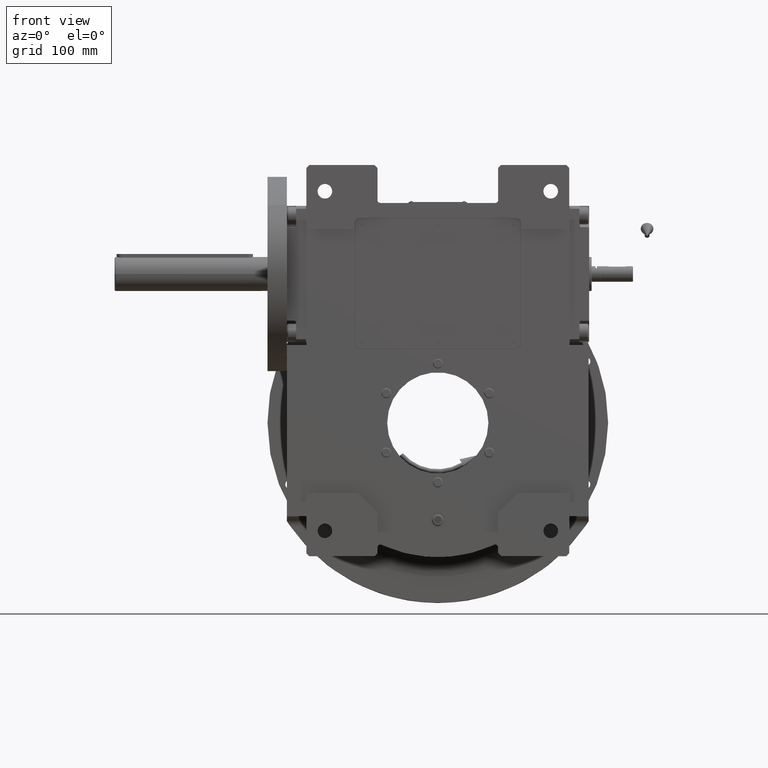
[diagram: clean part render]
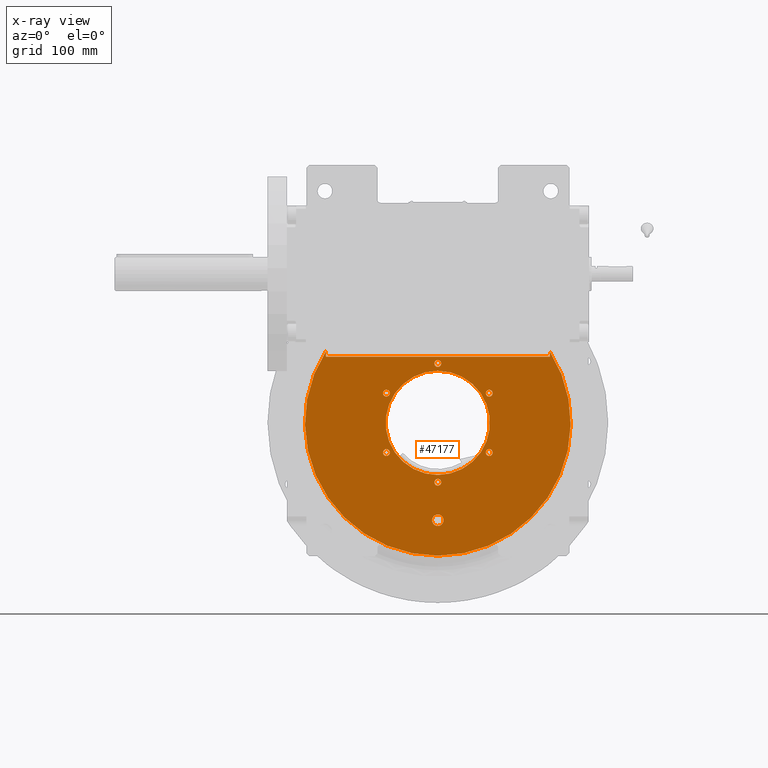
[diagram: x-ray — body ghosted, one internal face saturated and labeled with its STEP entity id]
A machine part, front view, then the same camera in x-ray: the body is ghosted and one INTERNAL B-rep face — a face not visible from any outside direction — is saturated and labeled: STEP entity #47177.
In plain terms, the highlighted planar face has unit normal (0, -1, 0).
Its self-contained STEP definition (entity closure, byte-faithful):
#52 = VERTEX_POINT ( 'NONE', #56416 ) ;
#644 = CARTESIAN_POINT ( 'NONE',  ( 3.500000000000009770, -63.00000000000001421, -61.00000000000000000 ) ) ;
#797 = EDGE_CURVE ( 'NONE', #66663, #32699, #59650, .T. ) ;
#1345 = VERTEX_POINT ( 'NONE', #54792 ) ;
#1465 = CARTESIAN_POINT ( 'NONE',  ( -49.32754963085080391, -63.00000000000001421, 30.50000000000000000 ) ) ;
#1786 = ORIENTED_EDGE ( 'NONE', *, *, #62558, .T. ) ;
#2279 = DIRECTION ( 'NONE',  ( 0.000000000000000000, -1.000000000000000000, 1.836970198721029688E-16 ) ) ;
#2328 = DIRECTION ( 'NONE',  ( 0.000000000000000000, 0.000000000000000000, 1.000000000000000000 ) ) ;
#3195 = VERTEX_POINT ( 'NONE', #46321 ) ;
#3951 = DIRECTION ( 'NONE',  ( 0.000000000000000000, 0.000000000000000000, 1.000000000000000000 ) ) ;
#4309 = EDGE_CURVE ( 'NONE', #58530, #43158, #64543, .T. ) ;
#4713 = CARTESIAN_POINT ( 'NONE',  ( 52.82754963085080391, -63.00000000000001421, 30.50000000000000000 ) ) ;
#4815 = EDGE_CURVE ( 'NONE', #52893, #51663, #31668, .T. ) ;
#4828 = DIRECTION ( 'NONE',  ( 0.000000000000000000, 0.000000000000000000, 1.000000000000000000 ) ) ;
#5087 = DIRECTION ( 'NONE',  ( 0.000000000000000000, 0.000000000000000000, 1.000000000000000000 ) ) ;
#5230 = DIRECTION ( 'NONE',  ( 0.000000000000000000, 0.000000000000000000, 1.000000000000000000 ) ) ;
#5348 = EDGE_LOOP ( 'NONE', ( #43760, #58051 ) ) ;
#5763 = CIRCLE ( 'NONE', #62669, 136.5000000000000000 ) ;
#5811 = VERTEX_POINT ( 'NONE', #69056 ) ;
#6097 = DIRECTION ( 'NONE',  ( 0.000000000000000000, 1.000000000000000000, 0.000000000000000000 ) ) ;
#6365 = EDGE_CURVE ( 'NONE', #14665, #3195, #39849, .T. ) ;
#6419 = ORIENTED_EDGE ( 'NONE', *, *, #55263, .T. ) ;
#6797 = EDGE_CURVE ( 'NONE', #27992, #1345, #45746, .T. ) ;
#6910 = DIRECTION ( 'NONE',  ( -1.209434443846979996E-15, -1.000000000000000000, 1.209434443846979996E-15 ) ) ;
#7019 = CARTESIAN_POINT ( 'NONE',  ( -115.0000000000000000, -63.00000000000000000, 0.000000000000000000 ) ) ;
#7023 = FACE_BOUND ( 'NONE', #56548, .T. ) ;
#7496 = CIRCLE ( 'NONE', #13317, 3.500000000000003109 ) ;
#8122 = AXIS2_PLACEMENT_3D ( 'NONE', #17363, #6097, #22826 ) ;
#8497 = DIRECTION ( 'NONE',  ( -0.000000000000000000, -1.000000000000000000, -0.000000000000000000 ) ) ;
#8956 = CIRCLE ( 'NONE', #49608, 3.500000000000003109 ) ;
#10473 = DIRECTION ( 'NONE',  ( 0.000000000000000000, 0.000000000000000000, 1.000000000000000000 ) ) ;
#10800 = ORIENTED_EDGE ( 'NONE', *, *, #60027, .T. ) ;
#11324 = CARTESIAN_POINT ( 'NONE',  ( 52.82754963085080391, -63.00000000000001421, -30.50000000000000000 ) ) ;
#12141 = FACE_OUTER_BOUND ( 'NONE', #30647, .T. ) ;
#12479 = FACE_BOUND ( 'NONE', #53424, .T. ) ;
#12758 = DIRECTION ( 'NONE',  ( -0.000000000000000000, -1.000000000000000000, -0.000000000000000000 ) ) ;
#12840 = FACE_BOUND ( 'NONE', #44963, .T. ) ;
#13317 = AXIS2_PLACEMENT_3D ( 'NONE', #4713, #32347, #5087 ) ;
#13583 = CIRCLE ( 'NONE', #32157, 3.500000000000003109 ) ;
#14124 = CARTESIAN_POINT ( 'NONE',  ( -115.0000000000000000, -63.00000000000000000, 67.99999999999997158 ) ) ;
#14612 = VERTEX_POINT ( 'NONE', #39973 ) ;
#14665 = VERTEX_POINT ( 'NONE', #1465 ) ;
#14747 = CARTESIAN_POINT ( 'NONE',  ( 0.000000000000000000, -62.99999999999998579, 67.99999999999997158 ) ) ;
#15323 = CIRCLE ( 'NONE', #53693, 3.500000000000003109 ) ;
#15748 = DIRECTION ( 'NONE',  ( 0.000000000000000000, 1.000000000000000000, 0.000000000000000000 ) ) ;
#15927 = AXIS2_PLACEMENT_3D ( 'NONE', #61608, #39779, #51433 ) ;
#15973 = ORIENTED_EDGE ( 'NONE', *, *, #51117, .T. ) ;
#16100 = DIRECTION ( 'NONE',  ( 0.000000000000000000, 0.000000000000000000, 1.000000000000000000 ) ) ;
#16171 = DIRECTION ( 'NONE',  ( -0.000000000000000000, -1.000000000000000000, -0.000000000000000000 ) ) ;
#16442 = AXIS2_PLACEMENT_3D ( 'NONE', #11324, #12758, #44409 ) ;
#16539 = DIRECTION ( 'NONE',  ( 0.000000000000000000, 0.000000000000000000, 1.000000000000000000 ) ) ;
#17136 = VERTEX_POINT ( 'NONE', #23847 ) ;
#17361 = LINE ( 'NONE', #67524, #44140 ) ;
#17363 = CARTESIAN_POINT ( 'NONE',  ( 0.000000000000000000, -63.00000000000000000, 0.000000000000000000 ) ) ;
#17448 = ORIENTED_EDGE ( 'NONE', *, *, #4815, .T. ) ;
#17535 = EDGE_CURVE ( 'NONE', #43158, #51663, #29923, .T. ) ;
#17837 = DIRECTION ( 'NONE',  ( 1.000000000000000000, -2.362176648138630895E-15, 0.000000000000000000 ) ) ;
#17900 = AXIS2_PLACEMENT_3D ( 'NONE', #66343, #16171, #16539 ) ;
#19241 = CARTESIAN_POINT ( 'NONE',  ( 49.32754963085080391, -63.00000000000001421, 30.50000000000000000 ) ) ;
#19430 = CARTESIAN_POINT ( 'NONE',  ( 115.0000000000000000, -63.00000000000000000, 73.53400573884168523 ) ) ;
#19832 = AXIS2_PLACEMENT_3D ( 'NONE', #64816, #30325, #42632 ) ;
#19902 = AXIS2_PLACEMENT_3D ( 'NONE', #65002, #65387, #3951 ) ;
#20145 = CARTESIAN_POINT ( 'NONE',  ( 0.000000000000000000, -63.00000000000000000, 0.000000000000000000 ) ) ;
#20416 = EDGE_LOOP ( 'NONE', ( #10800, #52899 ) ) ;
#22246 = EDGE_CURVE ( 'NONE', #3195, #14665, #8956, .T. ) ;
#22826 = DIRECTION ( 'NONE',  ( 0.000000000000000000, 0.000000000000000000, 1.000000000000000000 ) ) ;
#23613 = VERTEX_POINT ( 'NONE', #65614 ) ;
#23847 = CARTESIAN_POINT ( 'NONE',  ( 3.499999999999997780, -63.00000000000001421, 61.00000000000000000 ) ) ;
#24460 = CARTESIAN_POINT ( 'NONE',  ( 5.875000000000000000, -63.00000000000001421, -100.0000000000000000 ) ) ;
#24611 = EDGE_CURVE ( 'NONE', #52, #25044, #30201, .T. ) ;
#24825 = CARTESIAN_POINT ( 'NONE',  ( -2.204364238465240161E-15, -63.00000000000001421, 61.00000000000000000 ) ) ;
#24843 = CARTESIAN_POINT ( 'NONE',  ( -3.499999999999990674, -63.00000000000001421, -61.00000000000000000 ) ) ;
#25044 = VERTEX_POINT ( 'NONE', #51770 ) ;
#25465 = ORIENTED_EDGE ( 'NONE', *, *, #50947, .T. ) ;
#25554 = DIRECTION ( 'NONE',  ( 0.000000000000000000, 0.000000000000000000, 1.000000000000000000 ) ) ;
#25761 = EDGE_CURVE ( 'NONE', #53920, #27402, #60473, .T. ) ;
#27073 = VECTOR ( 'NONE', #57185, 1000.000000000000000 ) ;
#27402 = VERTEX_POINT ( 'NONE', #27596 ) ;
#27583 = AXIS2_PLACEMENT_3D ( 'NONE', #53922, #54273, #16100 ) ;
#27596 = CARTESIAN_POINT ( 'NONE',  ( -56.32754963085080391, -63.00000000000001421, -30.50000000000000000 ) ) ;
#27992 = VERTEX_POINT ( 'NONE', #24460 ) ;
#29224 = PLANE ( 'NONE',  #40802 ) ;
#29582 = FACE_BOUND ( 'NONE', #53483, .T. ) ;
#29923 = LINE ( 'NONE', #7019, #27073 ) ;
#30201 = CIRCLE ( 'NONE', #8122, 53.50000000000000000 ) ;
#30325 = DIRECTION ( 'NONE',  ( -0.000000000000000000, -1.000000000000000000, -0.000000000000000000 ) ) ;
#30647 = EDGE_LOOP ( 'NONE', ( #56891, #48471, #6419, #17448, #55343 ) ) ;
#30880 = DIRECTION ( 'NONE',  ( -0.000000000000000000, -1.000000000000000000, -0.000000000000000000 ) ) ;
#30942 = CARTESIAN_POINT ( 'NONE',  ( -115.0000000000000000, -63.00000000000000000, 73.53400573884168523 ) ) ;
#30996 = CARTESIAN_POINT ( 'NONE',  ( -52.82754963085080391, -63.00000000000001421, 30.50000000000000000 ) ) ;
#31668 = CIRCLE ( 'NONE', #45584, 136.5000000000000000 ) ;
#32125 = CARTESIAN_POINT ( 'NONE',  ( 0.000000000000000000, -63.00000000000000000, 0.000000000000000000 ) ) ;
#32157 = AXIS2_PLACEMENT_3D ( 'NONE', #40481, #8497, #2328 ) ;
#32347 = DIRECTION ( 'NONE',  ( -0.000000000000000000, -1.000000000000000000, -0.000000000000000000 ) ) ;
#32464 = CARTESIAN_POINT ( 'NONE',  ( -52.82754963085080391, -63.00000000000001421, 30.50000000000000000 ) ) ;
#32699 = VERTEX_POINT ( 'NONE', #24843 ) ;
#32945 = EDGE_CURVE ( 'NONE', #14612, #5811, #68709, .T. ) ;
#34294 = FACE_BOUND ( 'NONE', #20416, .T. ) ;
#34987 = FACE_BOUND ( 'NONE', #54704, .T. ) ;
#36308 = DIRECTION ( 'NONE',  ( 0.000000000000000000, 0.000000000000000000, 1.000000000000000000 ) ) ;
#36894 = DIRECTION ( 'NONE',  ( -1.000000000000000000, 0.000000000000000000, 0.000000000000000000 ) ) ;
#37407 = ORIENTED_EDGE ( 'NONE', *, *, #57212, .F. ) ;
#38192 = CIRCLE ( 'NONE', #54503, 5.875000000000000000 ) ;
#38859 = CARTESIAN_POINT ( 'NONE',  ( 0.000000000000000000, -63.00000000000000000, -100.0000000000000000 ) ) ;
#39741 = VECTOR ( 'NONE', #36894, 1000.000000000000000 ) ;
#39779 = DIRECTION ( 'NONE',  ( -0.000000000000000000, -1.000000000000000000, -0.000000000000000000 ) ) ;
#39849 = CIRCLE ( 'NONE', #42170, 3.500000000000003109 ) ;
#39936 = ORIENTED_EDGE ( 'NONE', *, *, #68801, .T. ) ;
#39973 = CARTESIAN_POINT ( 'NONE',  ( 56.32754963085080391, -63.00000000000001421, -30.50000000000000000 ) ) ;
#40481 = CARTESIAN_POINT ( 'NONE',  ( 52.82754963085080391, -63.00000000000001421, 30.50000000000000000 ) ) ;
#40802 = AXIS2_PLACEMENT_3D ( 'NONE', #46274, #2279, #51384 ) ;
#40845 = CARTESIAN_POINT ( 'NONE',  ( 56.32754963085080391, -63.00000000000001421, 30.50000000000000000 ) ) ;
#42170 = AXIS2_PLACEMENT_3D ( 'NONE', #32464, #48121, #4828 ) ;
#42221 = AXIS2_PLACEMENT_3D ( 'NONE', #50906, #6910, #17837 ) ;
#42347 = ORIENTED_EDGE ( 'NONE', *, *, #25761, .T. ) ;
#42632 = DIRECTION ( 'NONE',  ( 0.000000000000000000, 0.000000000000000000, 1.000000000000000000 ) ) ;
#42880 = DIRECTION ( 'NONE',  ( 1.000000000000000000, -2.362176648138630895E-15, 0.000000000000000000 ) ) ;
#43158 = VERTEX_POINT ( 'NONE', #14124 ) ;
#43760 = ORIENTED_EDGE ( 'NONE', *, *, #22246, .T. ) ;
#44140 = VECTOR ( 'NONE', #66081, 1000.000000000000000 ) ;
#44351 = VERTEX_POINT ( 'NONE', #19241 ) ;
#44409 = DIRECTION ( 'NONE',  ( 0.000000000000000000, 0.000000000000000000, 1.000000000000000000 ) ) ;
#44919 = CARTESIAN_POINT ( 'NONE',  ( -49.32754963085080391, -63.00000000000001421, -30.50000000000000000 ) ) ;
#44963 = EDGE_LOOP ( 'NONE', ( #1786, #15973 ) ) ;
#45398 = AXIS2_PLACEMENT_3D ( 'NONE', #48654, #49741, #10473 ) ;
#45584 = AXIS2_PLACEMENT_3D ( 'NONE', #20145, #15748, #60092 ) ;
#45746 = CIRCLE ( 'NONE', #42221, 5.875000000000000000 ) ;
#46274 = CARTESIAN_POINT ( 'NONE',  ( 0.000000000000000000, -63.00000000000000000, 2.534926901656784567E-14 ) ) ;
#46321 = CARTESIAN_POINT ( 'NONE',  ( -56.32754963085080391, -63.00000000000001421, 30.50000000000000000 ) ) ;
#46740 = VERTEX_POINT ( 'NONE', #19430 ) ;
#46972 = DIRECTION ( 'NONE',  ( -0.000000000000000000, -1.000000000000000000, -0.000000000000000000 ) ) ;
#47177 = ADVANCED_FACE ( 'NONE', ( #7023, #12141, #62992, #34294, #12840, #34987, #12479, #56476, #29582 ), #29224, .F. ) ;
#48121 = DIRECTION ( 'NONE',  ( -0.000000000000000000, -1.000000000000000000, -0.000000000000000000 ) ) ;
#48471 = ORIENTED_EDGE ( 'NONE', *, *, #55962, .T. ) ;
#48654 = CARTESIAN_POINT ( 'NONE',  ( -52.82754963085080391, -63.00000000000001421, -30.50000000000000000 ) ) ;
#49544 = ORIENTED_EDGE ( 'NONE', *, *, #24611, .F. ) ;
#49608 = AXIS2_PLACEMENT_3D ( 'NONE', #30996, #69910, #25554 ) ;
#49626 = ORIENTED_EDGE ( 'NONE', *, *, #32945, .T. ) ;
#49741 = DIRECTION ( 'NONE',  ( -0.000000000000000000, -1.000000000000000000, -0.000000000000000000 ) ) ;
#50906 = CARTESIAN_POINT ( 'NONE',  ( 0.000000000000000000, -63.00000000000000000, -100.0000000000000000 ) ) ;
#50947 = EDGE_CURVE ( 'NONE', #32699, #66663, #63498, .T. ) ;
#51043 = ORIENTED_EDGE ( 'NONE', *, *, #51302, .T. ) ;
#51117 = EDGE_CURVE ( 'NONE', #58124, #44351, #13583, .T. ) ;
#51302 = EDGE_CURVE ( 'NONE', #27402, #53920, #71697, .T. ) ;
#51384 = DIRECTION ( 'NONE',  ( 0.000000000000000000, 1.836970198721029688E-16, 1.000000000000000000 ) ) ;
#51433 = DIRECTION ( 'NONE',  ( 0.000000000000000000, 0.000000000000000000, 1.000000000000000000 ) ) ;
#51663 = VERTEX_POINT ( 'NONE', #30942 ) ;
#51770 = CARTESIAN_POINT ( 'NONE',  ( 0.000000000000000000, -63.00000000000000000, -53.50000000000000000 ) ) ;
#52893 = VERTEX_POINT ( 'NONE', #61530 ) ;
#52899 = ORIENTED_EDGE ( 'NONE', *, *, #55057, .T. ) ;
#53424 = EDGE_LOOP ( 'NONE', ( #25465, #67835 ) ) ;
#53483 = EDGE_LOOP ( 'NONE', ( #37407, #49544 ) ) ;
#53693 = AXIS2_PLACEMENT_3D ( 'NONE', #24825, #46972, #69162 ) ;
#53920 = VERTEX_POINT ( 'NONE', #44919 ) ;
#53922 = CARTESIAN_POINT ( 'NONE',  ( -52.82754963085080391, -63.00000000000001421, -30.50000000000000000 ) ) ;
#54273 = DIRECTION ( 'NONE',  ( -0.000000000000000000, -1.000000000000000000, -0.000000000000000000 ) ) ;
#54503 = AXIS2_PLACEMENT_3D ( 'NONE', #38859, #61049, #42880 ) ;
#54704 = EDGE_LOOP ( 'NONE', ( #64612, #49626 ) ) ;
#54792 = CARTESIAN_POINT ( 'NONE',  ( -5.875000000000000000, -62.99999999999998579, -100.0000000000000000 ) ) ;
#55057 = EDGE_CURVE ( 'NONE', #17136, #23613, #63755, .T. ) ;
#55263 = EDGE_CURVE ( 'NONE', #46740, #52893, #5763, .T. ) ;
#55343 = ORIENTED_EDGE ( 'NONE', *, *, #17535, .F. ) ;
#55735 = CARTESIAN_POINT ( 'NONE',  ( 115.0000000000000000, -63.00000000000000000, 67.99999999999997158 ) ) ;
#55962 = EDGE_CURVE ( 'NONE', #58530, #46740, #17361, .T. ) ;
#56095 = EDGE_LOOP ( 'NONE', ( #51043, #42347 ) ) ;
#56416 = CARTESIAN_POINT ( 'NONE',  ( 6.551860375438339893E-15, -63.00000000000000000, 53.50000000000000000 ) ) ;
#56476 = FACE_BOUND ( 'NONE', #56095, .T. ) ;
#56548 = EDGE_LOOP ( 'NONE', ( #39936, #57757 ) ) ;
#56826 = AXIS2_PLACEMENT_3D ( 'NONE', #70873, #30880, #36308 ) ;
#56891 = ORIENTED_EDGE ( 'NONE', *, *, #4309, .F. ) ;
#57185 = DIRECTION ( 'NONE',  ( 0.000000000000000000, 0.000000000000000000, 1.000000000000000000 ) ) ;
#57212 = EDGE_CURVE ( 'NONE', #25044, #52, #60536, .T. ) ;
#57757 = ORIENTED_EDGE ( 'NONE', *, *, #6797, .T. ) ;
#58051 = ORIENTED_EDGE ( 'NONE', *, *, #6365, .T. ) ;
#58124 = VERTEX_POINT ( 'NONE', #40845 ) ;
#58530 = VERTEX_POINT ( 'NONE', #55735 ) ;
#59650 = CIRCLE ( 'NONE', #17900, 3.500000000000003109 ) ;
#60027 = EDGE_CURVE ( 'NONE', #23613, #17136, #15323, .T. ) ;
#60092 = DIRECTION ( 'NONE',  ( 0.000000000000000000, 0.000000000000000000, 1.000000000000000000 ) ) ;
#60473 = CIRCLE ( 'NONE', #45398, 3.499999999999999556 ) ;
#60536 = CIRCLE ( 'NONE', #19902, 53.50000000000000000 ) ;
#61049 = DIRECTION ( 'NONE',  ( -1.209434443846979996E-15, -1.000000000000000000, 1.209434443846979996E-15 ) ) ;
#61530 = CARTESIAN_POINT ( 'NONE',  ( 0.000000000000000000, -63.00000000000000000, -136.5000000000000000 ) ) ;
#61608 = CARTESIAN_POINT ( 'NONE',  ( 9.674709713264090904E-15, -63.00000000000001421, -61.00000000000000000 ) ) ;
#62558 = EDGE_CURVE ( 'NONE', #44351, #58124, #7496, .T. ) ;
#62669 = AXIS2_PLACEMENT_3D ( 'NONE', #32125, #70692, #5230 ) ;
#62755 = CIRCLE ( 'NONE', #19832, 3.499999999999999556 ) ;
#62992 = FACE_BOUND ( 'NONE', #5348, .T. ) ;
#63498 = CIRCLE ( 'NONE', #15927, 3.500000000000003109 ) ;
#63755 = CIRCLE ( 'NONE', #56826, 3.500000000000003109 ) ;
#64543 = LINE ( 'NONE', #14747, #39741 ) ;
#64612 = ORIENTED_EDGE ( 'NONE', *, *, #70029, .T. ) ;
#64816 = CARTESIAN_POINT ( 'NONE',  ( 52.82754963085080391, -63.00000000000001421, -30.50000000000000000 ) ) ;
#65002 = CARTESIAN_POINT ( 'NONE',  ( 0.000000000000000000, -63.00000000000000000, 0.000000000000000000 ) ) ;
#65387 = DIRECTION ( 'NONE',  ( 0.000000000000000000, 1.000000000000000000, 0.000000000000000000 ) ) ;
#65614 = CARTESIAN_POINT ( 'NONE',  ( -3.500000000000002220, -63.00000000000001421, 61.00000000000000000 ) ) ;
#66081 = DIRECTION ( 'NONE',  ( 0.000000000000000000, 0.000000000000000000, 1.000000000000000000 ) ) ;
#66343 = CARTESIAN_POINT ( 'NONE',  ( 9.674709713264090904E-15, -63.00000000000001421, -61.00000000000000000 ) ) ;
#66663 = VERTEX_POINT ( 'NONE', #644 ) ;
#67524 = CARTESIAN_POINT ( 'NONE',  ( 115.0000000000000000, -63.00000000000000000, 0.000000000000000000 ) ) ;
#67835 = ORIENTED_EDGE ( 'NONE', *, *, #797, .T. ) ;
#68709 = CIRCLE ( 'NONE', #16442, 3.499999999999999556 ) ;
#68801 = EDGE_CURVE ( 'NONE', #1345, #27992, #38192, .T. ) ;
#69056 = CARTESIAN_POINT ( 'NONE',  ( 49.32754963085080391, -63.00000000000001421, -30.50000000000000000 ) ) ;
#69162 = DIRECTION ( 'NONE',  ( 0.000000000000000000, 0.000000000000000000, 1.000000000000000000 ) ) ;
#69910 = DIRECTION ( 'NONE',  ( -0.000000000000000000, -1.000000000000000000, -0.000000000000000000 ) ) ;
#70029 = EDGE_CURVE ( 'NONE', #5811, #14612, #62755, .T. ) ;
#70692 = DIRECTION ( 'NONE',  ( 0.000000000000000000, 1.000000000000000000, 0.000000000000000000 ) ) ;
#70873 = CARTESIAN_POINT ( 'NONE',  ( -2.204364238465240161E-15, -63.00000000000001421, 61.00000000000000000 ) ) ;
#71697 = CIRCLE ( 'NONE', #27583, 3.499999999999999556 ) ;